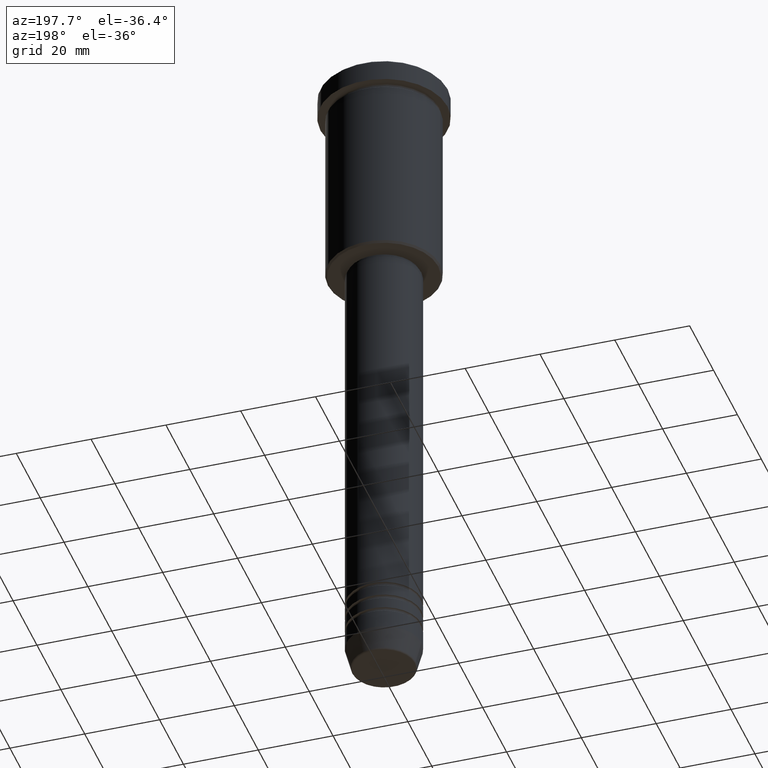
[diagram: clean part render]
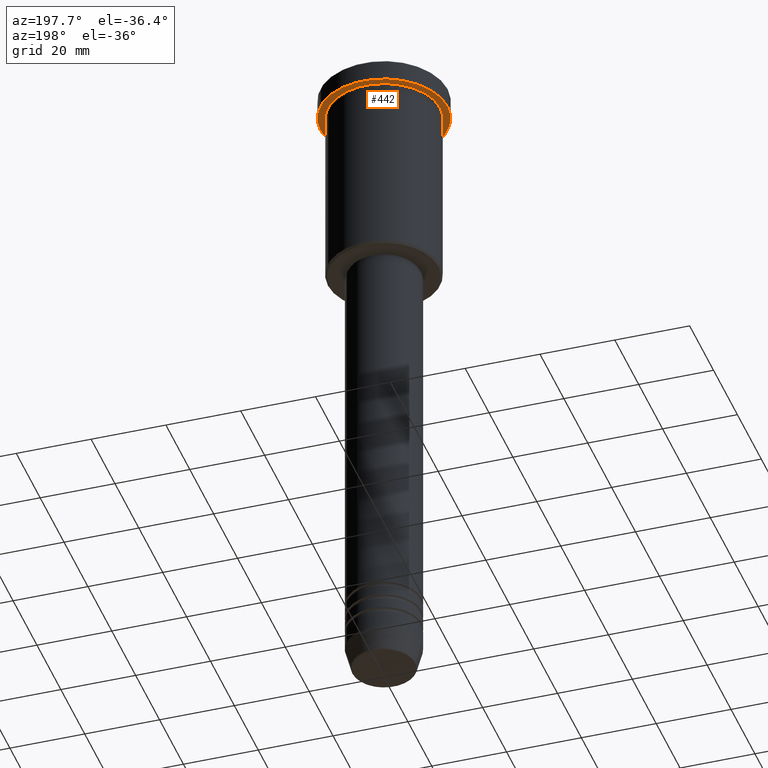
[diagram: same view with one face highlighted and labeled with its STEP entity id]
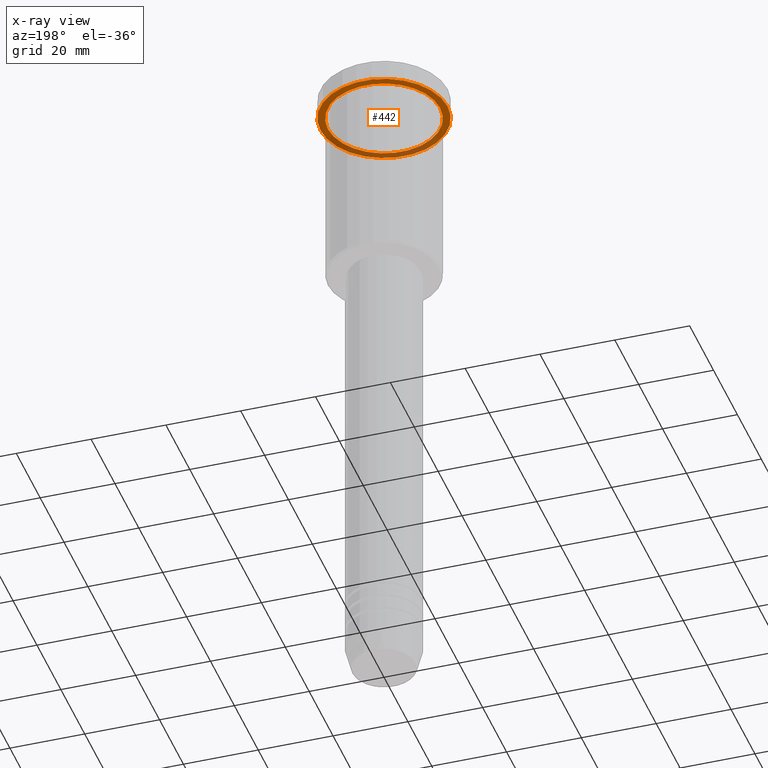
[diagram: x-ray of the same camera — body ghosted, the highlighted face saturated]
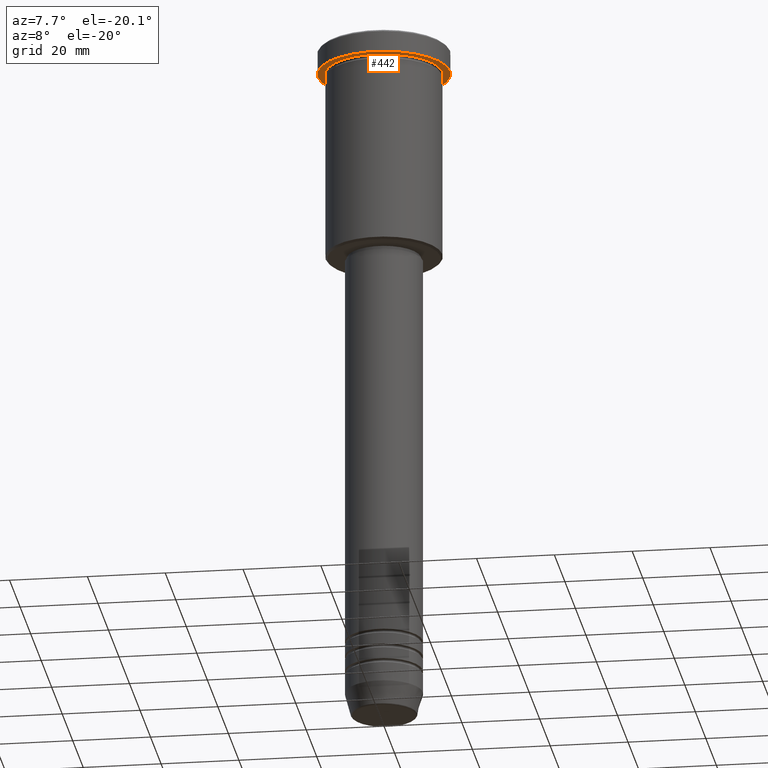
[diagram: same view with one face highlighted and labeled with its STEP entity id]
A machine part, auxiliary view. The second image highlights one B-rep face of the part: STEP entity #442.
The next image is the same camera in x-ray: the body ghosted, the highlighted face saturated — about 33% of this face is hidden behind the body in this view.
A second angle (auxiliary view) of the same face is appended — the face is thin or edge-on in the first view.
In plain terms, the highlighted planar face has unit normal (0, 0, -1).
Its self-contained STEP definition (entity closure, byte-faithful):
#19 = CARTESIAN_POINT ( 'NONE',  ( 0.000000000000000000, 0.000000000000000000, -5.999999999999994671 ) ) ;
#27 = CARTESIAN_POINT ( 'NONE',  ( 0.000000000000000000, 0.000000000000000000, -5.999999999999994671 ) ) ;
#64 = FACE_BOUND ( 'NONE', #1041, .T. ) ;
#68 = EDGE_CURVE ( 'NONE', #465, #476, #392, .T. ) ;
#107 = DIRECTION ( 'NONE',  ( -0.000000000000000000, -0.000000000000000000, 1.000000000000000000 ) ) ;
#116 = EDGE_CURVE ( 'NONE', #141, #1096, #1066, .T. ) ;
#141 = VERTEX_POINT ( 'NONE', #299 ) ;
#145 = ORIENTED_EDGE ( 'NONE', *, *, #1006, .F. ) ;
#168 = FACE_OUTER_BOUND ( 'NONE', #893, .T. ) ;
#194 = DIRECTION ( 'NONE',  ( -1.000000000000000000, 0.000000000000000000, 0.000000000000000000 ) ) ;
#202 = AXIS2_PLACEMENT_3D ( 'NONE', #19, #545, #194 ) ;
#239 = CIRCLE ( 'NONE', #427, 17.00000000000000000 ) ;
#292 = DIRECTION ( 'NONE',  ( 1.000000000000000000, 0.000000000000000000, 0.000000000000000000 ) ) ;
#299 = CARTESIAN_POINT ( 'NONE',  ( 15.00000000000000000, 1.836970198721029589E-15, -5.999999999999994671 ) ) ;
#392 = CIRCLE ( 'NONE', #448, 17.00000000000000000 ) ;
#427 = AXIS2_PLACEMENT_3D ( 'NONE', #1110, #107, #654 ) ;
#433 = CARTESIAN_POINT ( 'NONE',  ( 0.000000000000000000, 0.000000000000000000, -5.999999999999994671 ) ) ;
#437 = DIRECTION ( 'NONE',  ( -1.000000000000000000, 0.000000000000000000, -0.000000000000000000 ) ) ;
#442 = ADVANCED_FACE ( 'NONE', ( #64, #168 ), #815, .T. ) ;
#448 = AXIS2_PLACEMENT_3D ( 'NONE', #433, #452, #292 ) ;
#452 = DIRECTION ( 'NONE',  ( -0.000000000000000000, -0.000000000000000000, 1.000000000000000000 ) ) ;
#464 = DIRECTION ( 'NONE',  ( -0.000000000000000000, -0.000000000000000000, 1.000000000000000000 ) ) ;
#465 = VERTEX_POINT ( 'NONE', #630 ) ;
#476 = VERTEX_POINT ( 'NONE', #612 ) ;
#545 = DIRECTION ( 'NONE',  ( -0.000000000000000000, -0.000000000000000000, 1.000000000000000000 ) ) ;
#592 = ORIENTED_EDGE ( 'NONE', *, *, #68, .F. ) ;
#612 = CARTESIAN_POINT ( 'NONE',  ( -17.00000000000000000, 2.081899558550500280E-15, -5.999999999999994671 ) ) ;
#630 = CARTESIAN_POINT ( 'NONE',  ( 17.00000000000000000, 0.000000000000000000, -5.999999999999994671 ) ) ;
#654 = DIRECTION ( 'NONE',  ( 1.000000000000000000, 0.000000000000000000, 0.000000000000000000 ) ) ;
#660 = AXIS2_PLACEMENT_3D ( 'NONE', #27, #464, #741 ) ;
#680 = CARTESIAN_POINT ( 'NONE',  ( -15.00000000000000000, 0.000000000000000000, -5.999999999999994671 ) ) ;
#738 = ORIENTED_EDGE ( 'NONE', *, *, #116, .T. ) ;
#741 = DIRECTION ( 'NONE',  ( -1.000000000000000000, 0.000000000000000000, 0.000000000000000000 ) ) ;
#815 = PLANE ( 'NONE',  #1119 ) ;
#893 = EDGE_LOOP ( 'NONE', ( #592, #145 ) ) ;
#896 = DIRECTION ( 'NONE',  ( 0.000000000000000000, 0.000000000000000000, -1.000000000000000000 ) ) ;
#897 = ORIENTED_EDGE ( 'NONE', *, *, #963, .T. ) ;
#963 = EDGE_CURVE ( 'NONE', #1096, #141, #1064, .T. ) ;
#1006 = EDGE_CURVE ( 'NONE', #476, #465, #239, .T. ) ;
#1041 = EDGE_LOOP ( 'NONE', ( #897, #738 ) ) ;
#1064 = CIRCLE ( 'NONE', #202, 15.00000000000000000 ) ;
#1066 = CIRCLE ( 'NONE', #660, 15.00000000000000000 ) ;
#1096 = VERTEX_POINT ( 'NONE', #680 ) ;
#1110 = CARTESIAN_POINT ( 'NONE',  ( 0.000000000000000000, 0.000000000000000000, -5.999999999999994671 ) ) ;
#1119 = AXIS2_PLACEMENT_3D ( 'NONE', #1165, #896, #437 ) ;
#1165 = CARTESIAN_POINT ( 'NONE',  ( 0.000000000000000000, 17.00000000000000000, -5.999999999999994671 ) ) ;